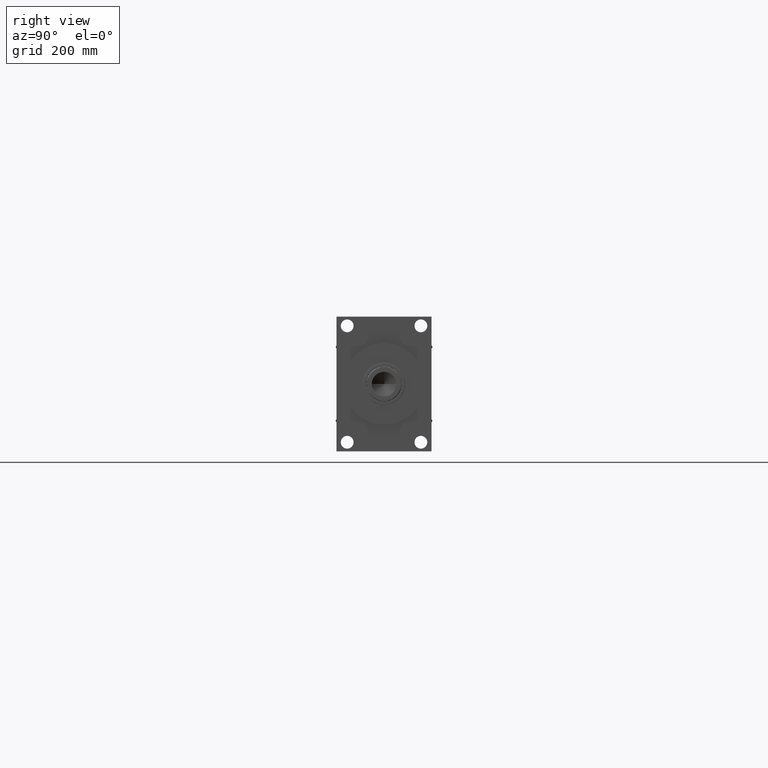
[diagram: clean part render]
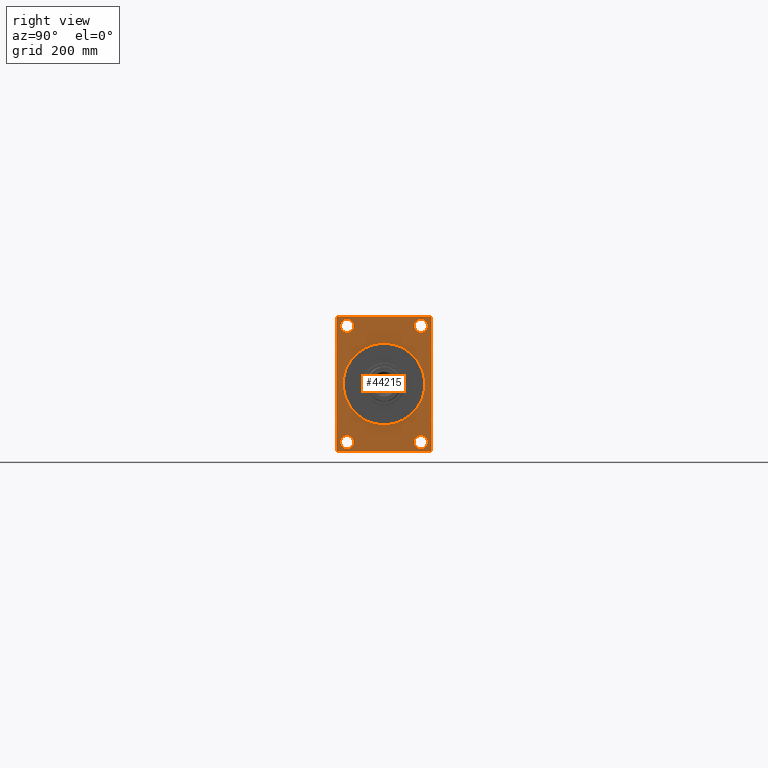
[diagram: same view with one face highlighted and labeled with its STEP entity id]
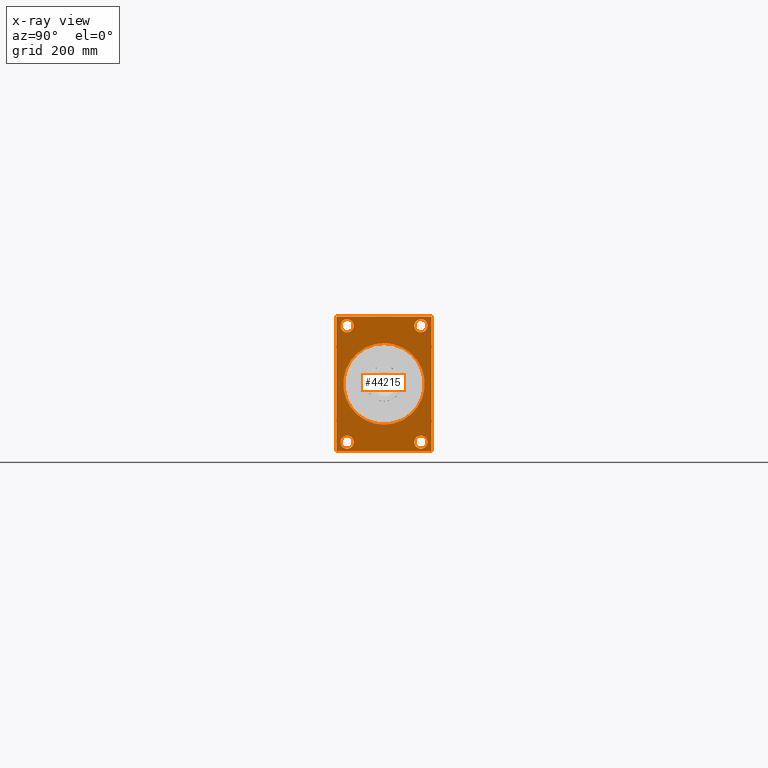
[diagram: x-ray of the same camera — body ghosted, the highlighted face saturated]
A machine part, right view. The second image highlights one B-rep face of the part: STEP entity #44215.
The next image is the same camera in x-ray: the body ghosted, the highlighted face saturated — about 0% of this face is hidden behind the body in this view.
In plain terms, the highlighted planar face has unit normal (-1, 0, 0).
Its self-contained STEP definition (entity closure, byte-faithful):
#1030 = FACE_BOUND ( 'NONE', #33459, .T. ) ;
#1233 = CARTESIAN_POINT ( 'NONE',  ( 1744.000000000000227, -122.5000000000000142, 173.5000000000000000 ) ) ;
#1690 = CARTESIAN_POINT ( 'NONE',  ( 1744.000000000000227, 122.0000000000000568, 173.5000000000000000 ) ) ;
#1973 = EDGE_LOOP ( 'NONE', ( #12616, #25452 ) ) ;
#2242 = AXIS2_PLACEMENT_3D ( 'NONE', #28634, #43329, #20699 ) ;
#2346 = ORIENTED_EDGE ( 'NONE', *, *, #16668, .T. ) ;
#2372 = VERTEX_POINT ( 'NONE', #32364 ) ;
#2379 = CARTESIAN_POINT ( 'NONE',  ( 1744.000000000000227, 122.5000000000000142, -173.0000000000000568 ) ) ;
#2404 = ORIENTED_EDGE ( 'NONE', *, *, #20329, .T. ) ;
#3086 = CARTESIAN_POINT ( 'NONE',  ( 1744.000000000000227, -122.0000000000000142, -173.5000000000000000 ) ) ;
#3218 = FACE_BOUND ( 'NONE', #7469, .T. ) ;
#3349 = DIRECTION ( 'NONE',  ( 0.000000000000000000, 0.000000000000000000, 1.000000000000000000 ) ) ;
#3374 = CARTESIAN_POINT ( 'NONE',  ( 1744.000000000000227, -94.99999999999997158, 133.0000000000001137 ) ) ;
#4513 = AXIS2_PLACEMENT_3D ( 'NONE', #29127, #43819, #40935 ) ;
#4616 = AXIS2_PLACEMENT_3D ( 'NONE', #39711, #21401, #20698 ) ;
#4755 = CIRCLE ( 'NONE', #7033, 105.2500000000000000 ) ;
#5069 = DIRECTION ( 'NONE',  ( 0.000000000000000000, 0.000000000000000000, 1.000000000000000000 ) ) ;
#5302 = DIRECTION ( 'NONE',  ( -1.000000000000000000, 0.000000000000000000, -0.000000000000000000 ) ) ;
#5534 = DIRECTION ( 'NONE',  ( 0.000000000000000000, 0.000000000000000000, 1.000000000000000000 ) ) ;
#5611 = EDGE_CURVE ( 'NONE', #44497, #8242, #10640, .T. ) ;
#5727 = VERTEX_POINT ( 'NONE', #8655 ) ;
#5768 = DIRECTION ( 'NONE',  ( -1.000000000000000000, 0.000000000000000000, -0.000000000000000000 ) ) ;
#6043 = EDGE_LOOP ( 'NONE', ( #30051, #31390 ) ) ;
#6292 = CARTESIAN_POINT ( 'NONE',  ( 1744.000000000000227, -122.5000000000000142, 173.0000000000000568 ) ) ;
#6865 = EDGE_CURVE ( 'NONE', #42201, #47467, #45274, .T. ) ;
#7033 = AXIS2_PLACEMENT_3D ( 'NONE', #38063, #27431, #5069 ) ;
#7197 = DIRECTION ( 'NONE',  ( -1.000000000000000000, 0.000000000000000000, -0.000000000000000000 ) ) ;
#7469 = EDGE_LOOP ( 'NONE', ( #25607, #16524 ) ) ;
#7928 = VERTEX_POINT ( 'NONE', #14657 ) ;
#7940 = DIRECTION ( 'NONE',  ( -1.000000000000000000, 0.000000000000000000, -0.000000000000000000 ) ) ;
#8048 = CARTESIAN_POINT ( 'NONE',  ( 1744.000000000000227, 95.00000000000000000, 132.9999999999996589 ) ) ;
#8242 = VERTEX_POINT ( 'NONE', #22556 ) ;
#8287 = AXIS2_PLACEMENT_3D ( 'NONE', #27123, #30981, #11726 ) ;
#8655 = CARTESIAN_POINT ( 'NONE',  ( 1744.000000000000227, -94.99999999999997158, -166.9999999999998579 ) ) ;
#9632 = CIRCLE ( 'NONE', #47313, 17.00000000000034817 ) ;
#10206 = AXIS2_PLACEMENT_3D ( 'NONE', #33433, #7197, #3349 ) ;
#10640 = CIRCLE ( 'NONE', #4513, 16.99999999999990408 ) ;
#11038 = VERTEX_POINT ( 'NONE', #12358 ) ;
#11241 = AXIS2_PLACEMENT_3D ( 'NONE', #30875, #15696, #26786 ) ;
#11438 = AXIS2_PLACEMENT_3D ( 'NONE', #12284, #5302, #16119 ) ;
#11537 = VERTEX_POINT ( 'NONE', #45143 ) ;
#11627 = FACE_OUTER_BOUND ( 'NONE', #45808, .T. ) ;
#11726 = DIRECTION ( 'NONE',  ( 0.000000000000000000, 0.000000000000000000, 1.000000000000000000 ) ) ;
#12284 = CARTESIAN_POINT ( 'NONE',  ( 1744.000000000000227, -94.99999999999997158, -149.9999999999999716 ) ) ;
#12358 = CARTESIAN_POINT ( 'NONE',  ( 1744.000000000000227, 95.00000000000000000, 167.0000000000003411 ) ) ;
#12616 = ORIENTED_EDGE ( 'NONE', *, *, #22520, .T. ) ;
#12662 = CARTESIAN_POINT ( 'NONE',  ( 1744.000000000000227, -122.5000000000000142, -173.0000000000000853 ) ) ;
#13265 = EDGE_CURVE ( 'NONE', #29562, #34308, #40535, .T. ) ;
#14271 = FACE_BOUND ( 'NONE', #6043, .T. ) ;
#14531 = CIRCLE ( 'NONE', #11438, 16.99999999999990408 ) ;
#14657 = CARTESIAN_POINT ( 'NONE',  ( 1744.000000000000227, 1.288940756102589170E-14, 105.2500000000000000 ) ) ;
#14750 = EDGE_CURVE ( 'NONE', #8242, #44497, #30796, .T. ) ;
#15696 = DIRECTION ( 'NONE',  ( -1.000000000000000000, 0.000000000000000000, -0.000000000000000000 ) ) ;
#15712 = VERTEX_POINT ( 'NONE', #12662 ) ;
#16119 = DIRECTION ( 'NONE',  ( 0.000000000000000000, 0.000000000000000000, 1.000000000000000000 ) ) ;
#16524 = ORIENTED_EDGE ( 'NONE', *, *, #6865, .T. ) ;
#16668 = EDGE_CURVE ( 'NONE', #26378, #39218, #31273, .T. ) ;
#18405 = CIRCLE ( 'NONE', #4616, 105.2500000000000000 ) ;
#18911 = ORIENTED_EDGE ( 'NONE', *, *, #29215, .T. ) ;
#20026 = PLANE ( 'NONE',  #11241 ) ;
#20329 = EDGE_CURVE ( 'NONE', #11038, #46201, #45207, .T. ) ;
#20698 = DIRECTION ( 'NONE',  ( 0.000000000000000000, 0.000000000000000000, 1.000000000000000000 ) ) ;
#20699 = DIRECTION ( 'NONE',  ( 0.000000000000000000, 0.000000000000000000, 1.000000000000000000 ) ) ;
#21140 = DIRECTION ( 'NONE',  ( 0.000000000000000000, 0.000000000000000000, 1.000000000000000000 ) ) ;
#21401 = DIRECTION ( 'NONE',  ( -1.000000000000000000, 0.000000000000000000, -0.000000000000000000 ) ) ;
#21818 = LINE ( 'NONE', #25672, #34739 ) ;
#21834 = VECTOR ( 'NONE', #46244, 1000.000000000000114 ) ;
#21971 = EDGE_CURVE ( 'NONE', #15712, #29869, #25764, .T. ) ;
#22520 = EDGE_CURVE ( 'NONE', #5727, #11537, #14531, .T. ) ;
#22556 = CARTESIAN_POINT ( 'NONE',  ( 1744.000000000000227, 95.00000000000000000, -133.0000000000000568 ) ) ;
#22582 = ORIENTED_EDGE ( 'NONE', *, *, #38406, .T. ) ;
#23462 = ORIENTED_EDGE ( 'NONE', *, *, #25056, .T. ) ;
#23796 = LINE ( 'NONE', #34623, #26912 ) ;
#23995 = AXIS2_PLACEMENT_3D ( 'NONE', #37552, #7940, #21140 ) ;
#24411 = EDGE_CURVE ( 'NONE', #29562, #39218, #23796, .T. ) ;
#24738 = CARTESIAN_POINT ( 'NONE',  ( 1744.000000000000227, 0.000000000000000000, -105.2500000000000000 ) ) ;
#24751 = VECTOR ( 'NONE', #34009, 1000.000000000000000 ) ;
#24774 = CIRCLE ( 'NONE', #23995, 16.99999999999990408 ) ;
#24875 = CARTESIAN_POINT ( 'NONE',  ( 1744.000000000000227, -94.99999999999997158, 166.9999999999999147 ) ) ;
#25056 = EDGE_CURVE ( 'NONE', #7928, #35447, #18405, .T. ) ;
#25452 = ORIENTED_EDGE ( 'NONE', *, *, #29696, .T. ) ;
#25607 = ORIENTED_EDGE ( 'NONE', *, *, #35333, .T. ) ;
#25672 = CARTESIAN_POINT ( 'NONE',  ( 1744.000000000000227, 122.5000000000000142, -173.4999999999999716 ) ) ;
#25764 = LINE ( 'NONE', #29379, #32179 ) ;
#25882 = ORIENTED_EDGE ( 'NONE', *, *, #21971, .T. ) ;
#26378 = VERTEX_POINT ( 'NONE', #44708 ) ;
#26786 = DIRECTION ( 'NONE',  ( -0.000000000000000000, 0.000000000000000000, 1.000000000000000000 ) ) ;
#26912 = VECTOR ( 'NONE', #44997, 1000.000000000000000 ) ;
#27123 = CARTESIAN_POINT ( 'NONE',  ( 1744.000000000000227, 95.00000000000000000, 150.0000000000000000 ) ) ;
#27225 = LINE ( 'NONE', #1233, #37220 ) ;
#27353 = ORIENTED_EDGE ( 'NONE', *, *, #44745, .T. ) ;
#27431 = DIRECTION ( 'NONE',  ( -1.000000000000000000, 0.000000000000000000, -0.000000000000000000 ) ) ;
#28193 = CARTESIAN_POINT ( 'NONE',  ( 1744.000000000000227, 95.00000000000000000, -166.9999999999998579 ) ) ;
#28634 = CARTESIAN_POINT ( 'NONE',  ( 1744.000000000000227, -94.99999999999997158, 150.0000000000000284 ) ) ;
#28669 = DIRECTION ( 'NONE',  ( 0.000000000000000000, 0.7071067811865867636, -0.7071067811865082708 ) ) ;
#29127 = CARTESIAN_POINT ( 'NONE',  ( 1744.000000000000227, 95.00000000000000000, -149.9999999999999716 ) ) ;
#29215 = EDGE_CURVE ( 'NONE', #34308, #2372, #43882, .T. ) ;
#29304 = VECTOR ( 'NONE', #45960, 1000.000000000000000 ) ;
#29379 = CARTESIAN_POINT ( 'NONE',  ( 1744.000000000000227, -122.0000000000000711, -173.5000000000000000 ) ) ;
#29453 = DIRECTION ( 'NONE',  ( 0.000000000000000000, -0.7071067811865474617, 0.7071067811865474617 ) ) ;
#29562 = VERTEX_POINT ( 'NONE', #30563 ) ;
#29696 = EDGE_CURVE ( 'NONE', #11537, #5727, #24774, .T. ) ;
#29869 = VERTEX_POINT ( 'NONE', #3086 ) ;
#30051 = ORIENTED_EDGE ( 'NONE', *, *, #5611, .T. ) ;
#30080 = VECTOR ( 'NONE', #29453, 1000.000000000000114 ) ;
#30563 = CARTESIAN_POINT ( 'NONE',  ( 1744.000000000000227, 122.5000000000000000, 173.0000000000000568 ) ) ;
#30796 = CIRCLE ( 'NONE', #39258, 16.99999999999990408 ) ;
#30875 = CARTESIAN_POINT ( 'NONE',  ( 1744.000000000000227, 0.000000000000000000, 0.000000000000000000 ) ) ;
#30981 = DIRECTION ( 'NONE',  ( -1.000000000000000000, 0.000000000000000000, -0.000000000000000000 ) ) ;
#31121 = EDGE_LOOP ( 'NONE', ( #27353, #2404 ) ) ;
#31273 = LINE ( 'NONE', #2379, #29304 ) ;
#31390 = ORIENTED_EDGE ( 'NONE', *, *, #14750, .T. ) ;
#31616 = ORIENTED_EDGE ( 'NONE', *, *, #38353, .T. ) ;
#32179 = VECTOR ( 'NONE', #28669, 1000.000000000000114 ) ;
#32261 = EDGE_CURVE ( 'NONE', #35447, #7928, #4755, .T. ) ;
#32364 = CARTESIAN_POINT ( 'NONE',  ( 1744.000000000000227, -122.0000000000000568, 173.5000000000000000 ) ) ;
#32587 = FACE_BOUND ( 'NONE', #1973, .T. ) ;
#32692 = ORIENTED_EDGE ( 'NONE', *, *, #32261, .T. ) ;
#32786 = EDGE_CURVE ( 'NONE', #26378, #29869, #21818, .T. ) ;
#32894 = DIRECTION ( 'NONE',  ( 0.000000000000000000, -1.000000000000000000, -1.132880637372608740E-16 ) ) ;
#33071 = CARTESIAN_POINT ( 'NONE',  ( 1744.000000000000227, 122.0000000000000568, 173.5000000000000000 ) ) ;
#33433 = CARTESIAN_POINT ( 'NONE',  ( 1744.000000000000227, -94.99999999999997158, 150.0000000000000284 ) ) ;
#33459 = EDGE_LOOP ( 'NONE', ( #32692, #23462 ) ) ;
#34009 = DIRECTION ( 'NONE',  ( 0.000000000000000000, -1.000000000000000000, 0.000000000000000000 ) ) ;
#34064 = CIRCLE ( 'NONE', #10206, 16.99999999999990408 ) ;
#34308 = VERTEX_POINT ( 'NONE', #1690 ) ;
#34623 = CARTESIAN_POINT ( 'NONE',  ( 1744.000000000000227, 122.5000000000000000, 173.5000000000000000 ) ) ;
#34739 = VECTOR ( 'NONE', #32894, 1000.000000000000000 ) ;
#35333 = EDGE_CURVE ( 'NONE', #47467, #42201, #34064, .T. ) ;
#35447 = VERTEX_POINT ( 'NONE', #24738 ) ;
#35630 = ORIENTED_EDGE ( 'NONE', *, *, #13265, .T. ) ;
#36216 = DIRECTION ( 'NONE',  ( 0.000000000000000000, 0.000000000000000000, 1.000000000000000000 ) ) ;
#37220 = VECTOR ( 'NONE', #38554, 1000.000000000000000 ) ;
#37552 = CARTESIAN_POINT ( 'NONE',  ( 1744.000000000000227, -94.99999999999997158, -149.9999999999999716 ) ) ;
#38063 = CARTESIAN_POINT ( 'NONE',  ( 1744.000000000000227, 0.000000000000000000, 0.000000000000000000 ) ) ;
#38087 = CARTESIAN_POINT ( 'NONE',  ( 1744.000000000000227, -122.5000000000000142, 173.0000000000000568 ) ) ;
#38353 = EDGE_CURVE ( 'NONE', #42599, #15712, #27225, .T. ) ;
#38406 = EDGE_CURVE ( 'NONE', #2372, #42599, #42398, .T. ) ;
#38554 = DIRECTION ( 'NONE',  ( 0.000000000000000000, 0.000000000000000000, -1.000000000000000000 ) ) ;
#39218 = VERTEX_POINT ( 'NONE', #39731 ) ;
#39258 = AXIS2_PLACEMENT_3D ( 'NONE', #47072, #43454, #36216 ) ;
#39553 = ORIENTED_EDGE ( 'NONE', *, *, #32786, .F. ) ;
#39711 = CARTESIAN_POINT ( 'NONE',  ( 1744.000000000000227, 0.000000000000000000, 0.000000000000000000 ) ) ;
#39731 = CARTESIAN_POINT ( 'NONE',  ( 1744.000000000000227, 122.5000000000000142, -173.0000000000000568 ) ) ;
#40535 = LINE ( 'NONE', #33071, #30080 ) ;
#40935 = DIRECTION ( 'NONE',  ( 0.000000000000000000, 0.000000000000000000, 1.000000000000000000 ) ) ;
#42126 = CARTESIAN_POINT ( 'NONE',  ( 1744.000000000000227, 95.00000000000000000, 150.0000000000000000 ) ) ;
#42201 = VERTEX_POINT ( 'NONE', #24875 ) ;
#42398 = LINE ( 'NONE', #38087, #21834 ) ;
#42491 = ORIENTED_EDGE ( 'NONE', *, *, #24411, .F. ) ;
#42599 = VERTEX_POINT ( 'NONE', #6292 ) ;
#43329 = DIRECTION ( 'NONE',  ( -1.000000000000000000, 0.000000000000000000, -0.000000000000000000 ) ) ;
#43454 = DIRECTION ( 'NONE',  ( -1.000000000000000000, 0.000000000000000000, -0.000000000000000000 ) ) ;
#43657 = FACE_BOUND ( 'NONE', #31121, .T. ) ;
#43819 = DIRECTION ( 'NONE',  ( -1.000000000000000000, 0.000000000000000000, -0.000000000000000000 ) ) ;
#43882 = LINE ( 'NONE', #45080, #24751 ) ;
#44215 = ADVANCED_FACE ( 'NONE', ( #3218, #32587, #14271, #43657, #1030, #11627 ), #20026, .F. ) ;
#44497 = VERTEX_POINT ( 'NONE', #28193 ) ;
#44708 = CARTESIAN_POINT ( 'NONE',  ( 1744.000000000000227, 122.0000000000000711, -173.4999999999999716 ) ) ;
#44745 = EDGE_CURVE ( 'NONE', #46201, #11038, #9632, .T. ) ;
#44997 = DIRECTION ( 'NONE',  ( 0.000000000000000000, 3.999362480638172489E-17, -1.000000000000000000 ) ) ;
#45080 = CARTESIAN_POINT ( 'NONE',  ( 1744.000000000000227, 122.5000000000000000, 173.5000000000000000 ) ) ;
#45143 = CARTESIAN_POINT ( 'NONE',  ( 1744.000000000000227, -94.99999999999997158, -133.0000000000000568 ) ) ;
#45207 = CIRCLE ( 'NONE', #8287, 17.00000000000034817 ) ;
#45274 = CIRCLE ( 'NONE', #2242, 16.99999999999990408 ) ;
#45808 = EDGE_LOOP ( 'NONE', ( #31616, #25882, #39553, #2346, #42491, #35630, #18911, #22582 ) ) ;
#45960 = DIRECTION ( 'NONE',  ( -0.000000000000000000, 0.7071067811865672237, 0.7071067811865279218 ) ) ;
#46201 = VERTEX_POINT ( 'NONE', #8048 ) ;
#46244 = DIRECTION ( 'NONE',  ( -0.000000000000000000, -0.7071067811865573427, -0.7071067811865376918 ) ) ;
#47072 = CARTESIAN_POINT ( 'NONE',  ( 1744.000000000000227, 95.00000000000000000, -149.9999999999999716 ) ) ;
#47313 = AXIS2_PLACEMENT_3D ( 'NONE', #42126, #5768, #5534 ) ;
#47467 = VERTEX_POINT ( 'NONE', #3374 ) ;